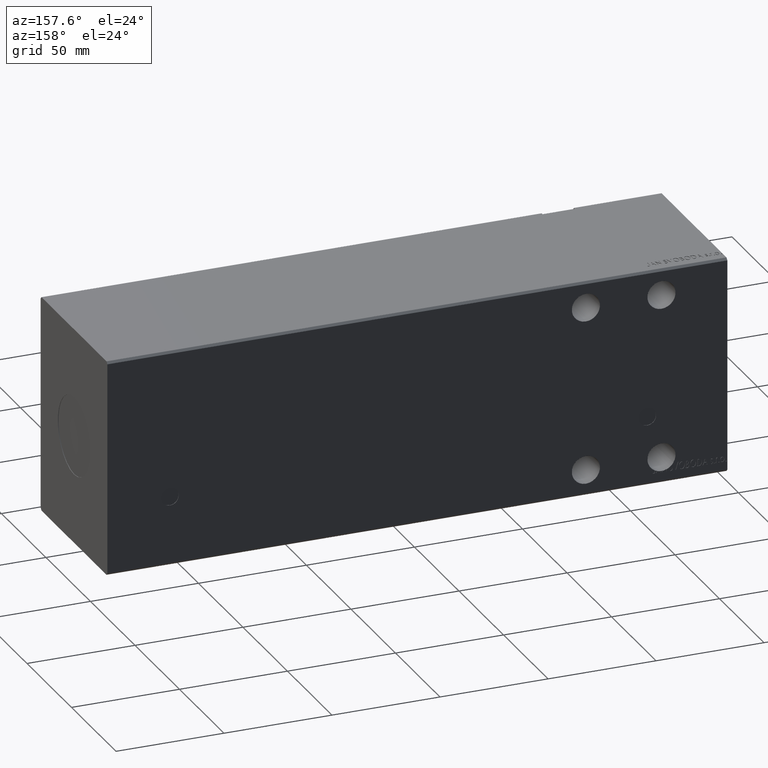
[diagram: clean part render]
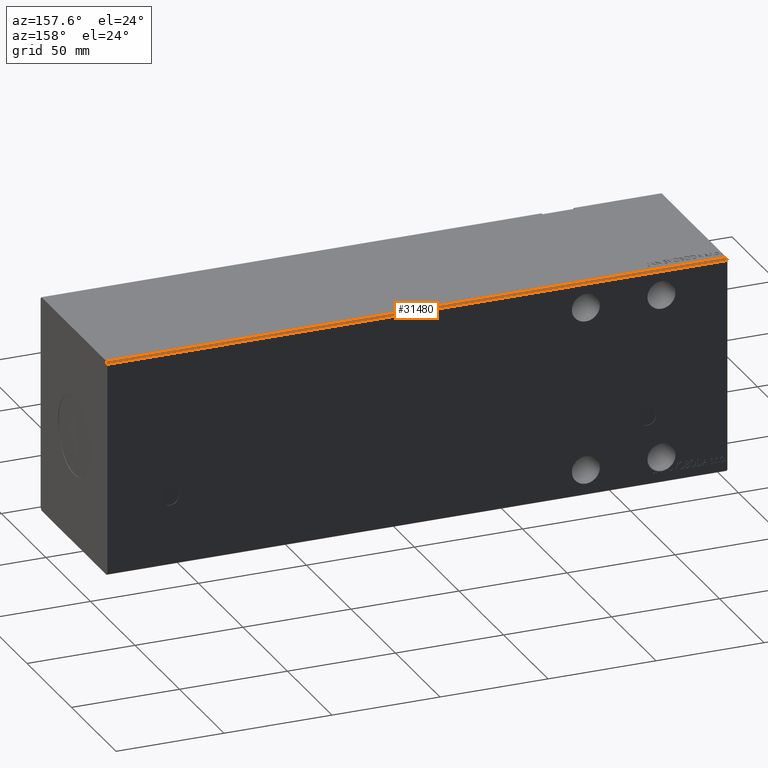
[diagram: same view with one face highlighted and labeled with its STEP entity id]
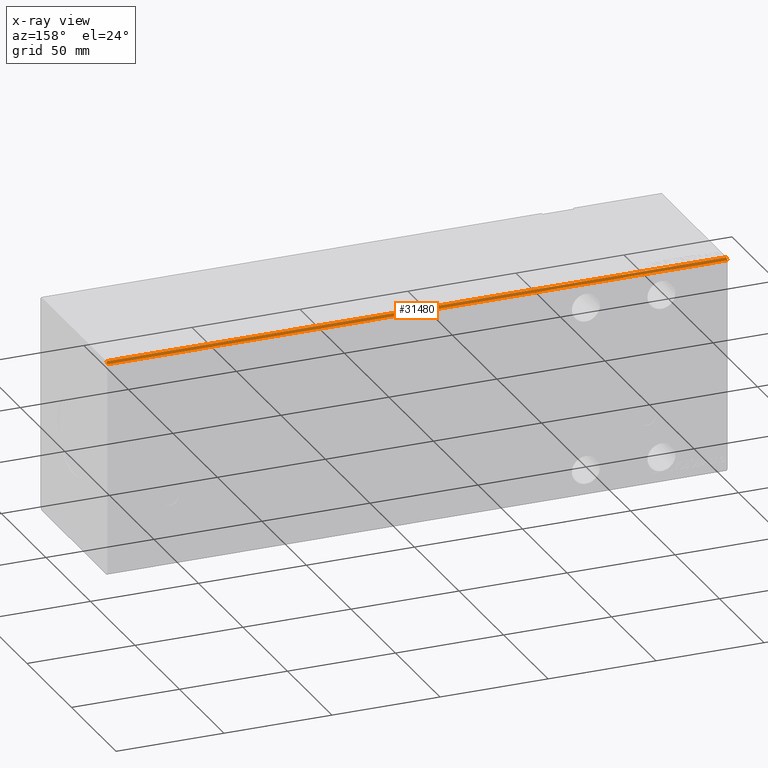
[diagram: x-ray of the same camera — body ghosted, the highlighted face saturated]
A machine part, auxiliary view. The second image highlights one B-rep face of the part: STEP entity #31480.
The next image is the same camera in x-ray: the body ghosted, the highlighted face saturated — about 0% of this face is hidden behind the body in this view.
In plain terms, the highlighted planar face has unit normal (0, -0.7071, -0.7071).
Its self-contained STEP definition (entity closure, byte-faithful):
#109 = DIRECTION ( 'NONE',  ( -1.000000000000000000, -0.000000000000000000, -0.000000000000000000 ) ) ;
#172 = VERTEX_POINT ( 'NONE', #33066 ) ;
#2404 = DIRECTION ( 'NONE',  ( 0.000000000000000000, -0.7071067811865475727, -0.7071067811865475727 ) ) ;
#3083 = VECTOR ( 'NONE', #35026, 1000.000000000000114 ) ;
#3618 = CARTESIAN_POINT ( 'NONE',  ( 287.0000000000000000, 37.50000000000000711, 49.00000000000000000 ) ) ;
#4011 = VERTEX_POINT ( 'NONE', #36931 ) ;
#4124 = ORIENTED_EDGE ( 'NONE', *, *, #40562, .T. ) ;
#4323 = LINE ( 'NONE', #38317, #31689 ) ;
#7402 = DIRECTION ( 'NONE',  ( 0.000000000000000000, -0.7071067811865474617, 0.7071067811865474617 ) ) ;
#10417 = ORIENTED_EDGE ( 'NONE', *, *, #15940, .T. ) ;
#10954 = LINE ( 'NONE', #36869, #20002 ) ;
#14342 = LINE ( 'NONE', #3618, #33777 ) ;
#15940 = EDGE_CURVE ( 'NONE', #172, #4011, #14342, .T. ) ;
#16458 = EDGE_CURVE ( 'NONE', #33082, #33718, #10954, .T. ) ;
#17033 = EDGE_LOOP ( 'NONE', ( #4124, #33172, #25442, #10417 ) ) ;
#19563 = CARTESIAN_POINT ( 'NONE',  ( 287.0000000000000000, 37.50000000000000711, 49.00000000000000000 ) ) ;
#20002 = VECTOR ( 'NONE', #40362, 1000.000000000000000 ) ;
#20513 = CARTESIAN_POINT ( 'NONE',  ( 0.000000000000000000, 36.50000000000000711, 50.00000000000000000 ) ) ;
#21130 = FACE_OUTER_BOUND ( 'NONE', #17033, .T. ) ;
#21340 = DIRECTION ( 'NONE',  ( 0.000000000000000000, 0.7071067811865474617, -0.7071067811865474617 ) ) ;
#22258 = AXIS2_PLACEMENT_3D ( 'NONE', #30611, #2404, #21340 ) ;
#24230 = PLANE ( 'NONE',  #22258 ) ;
#24508 = EDGE_CURVE ( 'NONE', #172, #33082, #34415, .T. ) ;
#25442 = ORIENTED_EDGE ( 'NONE', *, *, #24508, .F. ) ;
#30611 = CARTESIAN_POINT ( 'NONE',  ( 287.0000000000000000, 37.50000000000000711, 49.00000000000000000 ) ) ;
#31480 = ADVANCED_FACE ( 'NONE', ( #21130 ), #24230, .F. ) ;
#31689 = VECTOR ( 'NONE', #7402, 1000.000000000000114 ) ;
#33066 = CARTESIAN_POINT ( 'NONE',  ( 287.0000000000000000, 37.50000000000000711, 49.00000000000000000 ) ) ;
#33082 = VERTEX_POINT ( 'NONE', #37754 ) ;
#33172 = ORIENTED_EDGE ( 'NONE', *, *, #16458, .F. ) ;
#33718 = VERTEX_POINT ( 'NONE', #20513 ) ;
#33777 = VECTOR ( 'NONE', #109, 1000.000000000000000 ) ;
#34415 = LINE ( 'NONE', #19563, #3083 ) ;
#35026 = DIRECTION ( 'NONE',  ( 0.000000000000000000, -0.7071067811865474617, 0.7071067811865474617 ) ) ;
#36869 = CARTESIAN_POINT ( 'NONE',  ( 287.0000000000000000, 36.50000000000000711, 50.00000000000000000 ) ) ;
#36931 = CARTESIAN_POINT ( 'NONE',  ( 0.000000000000000000, 37.50000000000000711, 49.00000000000000000 ) ) ;
#37754 = CARTESIAN_POINT ( 'NONE',  ( 287.0000000000000000, 36.50000000000000711, 50.00000000000000000 ) ) ;
#38317 = CARTESIAN_POINT ( 'NONE',  ( 0.000000000000000000, 37.50000000000000711, 49.00000000000000000 ) ) ;
#40362 = DIRECTION ( 'NONE',  ( -1.000000000000000000, -0.000000000000000000, -0.000000000000000000 ) ) ;
#40562 = EDGE_CURVE ( 'NONE', #4011, #33718, #4323, .T. ) ;